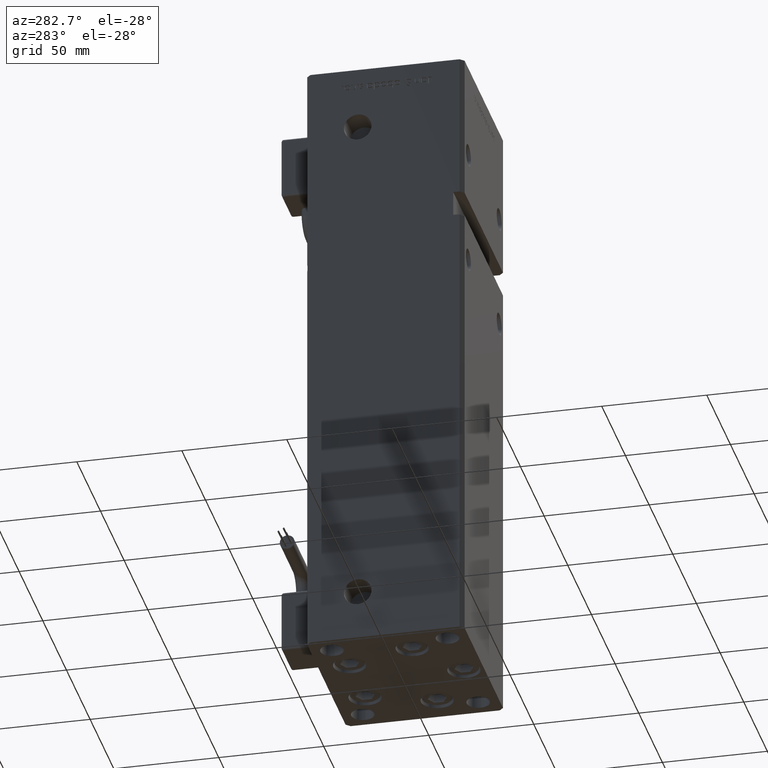
[diagram: clean part render]
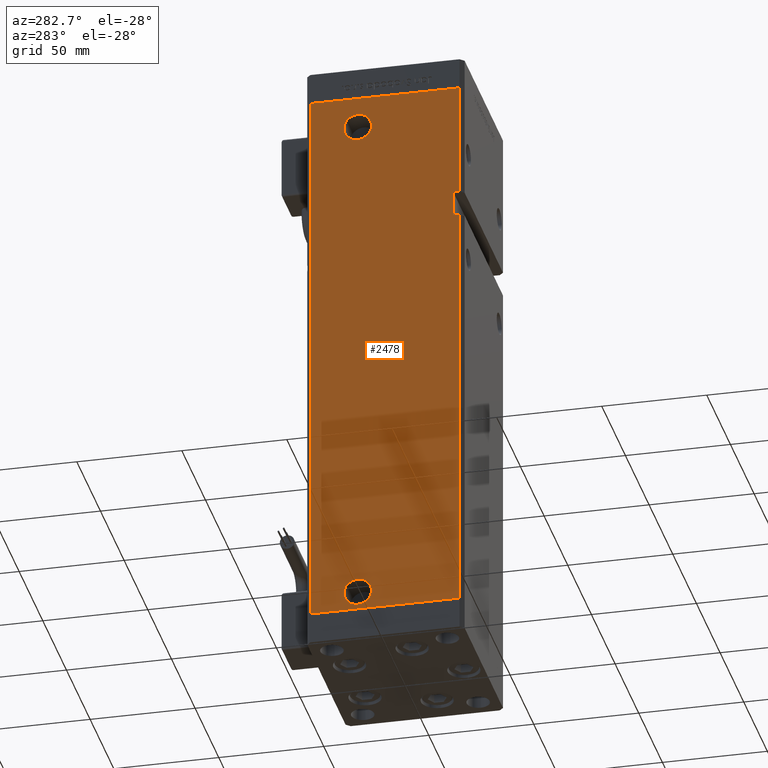
[diagram: same view with one face highlighted and labeled with its STEP entity id]
A machine part, auxiliary view. The second image highlights one B-rep face of the part: STEP entity #2478.
In plain terms, the highlighted planar face has unit normal (1, 0, 0).
Its self-contained STEP definition (entity closure, byte-faithful):
#1711 = ORIENTED_EDGE ( 'NONE', *, *, #8324, .F. ) ;
#2478 = ADVANCED_FACE ( 'NONE', ( #54106, #6136, #16553 ), #32516, .F. ) ;
#2841 = LINE ( 'NONE', #28671, #39061 ) ;
#4008 = CARTESIAN_POINT ( 'NONE',  ( -42.50000000000001421, 35.50000000000000711, 0.000000000000000000 ) ) ;
#4196 = LINE ( 'NONE', #25783, #36272 ) ;
#6136 = FACE_BOUND ( 'NONE', #47079, .T. ) ;
#6181 = CARTESIAN_POINT ( 'NONE',  ( -42.50000000000000000, 6.419999999999950191, 253.5000000000000000 ) ) ;
#7005 = VERTEX_POINT ( 'NONE', #40855 ) ;
#7710 = LINE ( 'NONE', #39672, #38522 ) ;
#7746 = ORIENTED_EDGE ( 'NONE', *, *, #55358, .T. ) ;
#7990 = EDGE_CURVE ( 'NONE', #51947, #43199, #7710, .T. ) ;
#8043 = VERTEX_POINT ( 'NONE', #6181 ) ;
#8183 = ORIENTED_EDGE ( 'NONE', *, *, #14923, .T. ) ;
#8223 = ORIENTED_EDGE ( 'NONE', *, *, #45702, .F. ) ;
#8324 = EDGE_CURVE ( 'NONE', #28341, #53885, #27681, .T. ) ;
#9240 = AXIS2_PLACEMENT_3D ( 'NONE', #15011, #9894, #37128 ) ;
#9894 = DIRECTION ( 'NONE',  ( -1.000000000000000000, -2.275047181608927644E-16, 0.000000000000000000 ) ) ;
#10957 = DIRECTION ( 'NONE',  ( -3.909236002201255146E-16, 1.000000000000000000, 0.000000000000000000 ) ) ;
#11454 = CARTESIAN_POINT ( 'NONE',  ( -42.50000000000000000, 12.99999999999999467, 253.5000000000000000 ) ) ;
#12936 = EDGE_CURVE ( 'NONE', #18418, #47975, #53621, .T. ) ;
#13321 = ORIENTED_EDGE ( 'NONE', *, *, #31096, .F. ) ;
#14887 = CIRCLE ( 'NONE', #40223, 6.580000000000002736 ) ;
#14923 = EDGE_CURVE ( 'NONE', #25477, #53885, #27468, .T. ) ;
#15011 = CARTESIAN_POINT ( 'NONE',  ( -42.50000000000000000, 12.99999999999999467, 253.5000000000000000 ) ) ;
#15026 = ORIENTED_EDGE ( 'NONE', *, *, #30621, .F. ) ;
#16515 = DIRECTION ( 'NONE',  ( -0.000000000000000000, -1.000000000000000000, -0.000000000000000000 ) ) ;
#16553 = FACE_BOUND ( 'NONE', #47668, .T. ) ;
#16571 = VERTEX_POINT ( 'NONE', #20230 ) ;
#16925 = CARTESIAN_POINT ( 'NONE',  ( -42.49999999999998579, -32.50000000000000711, 214.0000000000000284 ) ) ;
#17328 = CARTESIAN_POINT ( 'NONE',  ( -42.49999999999998579, -35.50000000000000711, 0.000000000000000000 ) ) ;
#17627 = CARTESIAN_POINT ( 'NONE',  ( -42.50000000000000000, 6.419999999999991935, 9.000000000000007105 ) ) ;
#17697 = CARTESIAN_POINT ( 'NONE',  ( -42.50000000000001421, 35.50000000000000711, 268.5000000000000000 ) ) ;
#17748 = VECTOR ( 'NONE', #32212, 1000.000000000000000 ) ;
#18395 = AXIS2_PLACEMENT_3D ( 'NONE', #53827, #33854, #10957 ) ;
#18418 = VERTEX_POINT ( 'NONE', #36804 ) ;
#19134 = AXIS2_PLACEMENT_3D ( 'NONE', #11454, #55446, #50887 ) ;
#19504 = CARTESIAN_POINT ( 'NONE',  ( -42.50000000000000000, 12.99999999999999467, 9.000000000000007105 ) ) ;
#19784 = DIRECTION ( 'NONE',  ( -1.000000000000000000, -2.275047181608927644E-16, 0.000000000000000000 ) ) ;
#19799 = CARTESIAN_POINT ( 'NONE',  ( -42.49999999999998579, -35.50000000000000711, 268.5000000000000000 ) ) ;
#19931 = ORIENTED_EDGE ( 'NONE', *, *, #52096, .F. ) ;
#20225 = CIRCLE ( 'NONE', #31058, 6.580000000000002736 ) ;
#20230 = CARTESIAN_POINT ( 'NONE',  ( -42.50000000000000000, 19.57999999999999829, 9.000000000000007105 ) ) ;
#20393 = DIRECTION ( 'NONE',  ( 3.909236002201255146E-16, -1.000000000000000000, 0.000000000000000000 ) ) ;
#21999 = VECTOR ( 'NONE', #33945, 1000.000000000000000 ) ;
#23588 = ORIENTED_EDGE ( 'NONE', *, *, #7990, .T. ) ;
#25159 = LINE ( 'NONE', #16925, #21999 ) ;
#25477 = VERTEX_POINT ( 'NONE', #52828 ) ;
#25783 = CARTESIAN_POINT ( 'NONE',  ( -42.49999999999998579, -32.50000000000000711, 202.0000000000000000 ) ) ;
#25936 = DIRECTION ( 'NONE',  ( -0.000000000000000000, -0.000000000000000000, -1.000000000000000000 ) ) ;
#26060 = CARTESIAN_POINT ( 'NONE',  ( -42.49999999999998579, -35.50000000000001421, 214.0000000000000284 ) ) ;
#26193 = CARTESIAN_POINT ( 'NONE',  ( -42.50000000000000000, 19.58000000000003737, 253.5000000000000000 ) ) ;
#27468 = LINE ( 'NONE', #4008, #46819 ) ;
#27681 = LINE ( 'NONE', #48695, #17748 ) ;
#28341 = VERTEX_POINT ( 'NONE', #34496 ) ;
#28436 = VECTOR ( 'NONE', #25936, 1000.000000000000000 ) ;
#28671 = CARTESIAN_POINT ( 'NONE',  ( -42.49999999999998579, -35.50000000000000711, 268.5000000000000000 ) ) ;
#29157 = CIRCLE ( 'NONE', #9240, 6.580000000000044480 ) ;
#29618 = LINE ( 'NONE', #17697, #28436 ) ;
#30386 = DIRECTION ( 'NONE',  ( 3.909236002201255146E-16, -1.000000000000000000, 0.000000000000000000 ) ) ;
#30621 = EDGE_CURVE ( 'NONE', #47975, #43199, #2841, .T. ) ;
#31058 = AXIS2_PLACEMENT_3D ( 'NONE', #19504, #19784, #50158 ) ;
#31096 = EDGE_CURVE ( 'NONE', #8043, #54371, #39987, .T. ) ;
#32212 = DIRECTION ( 'NONE',  ( -0.000000000000000000, -0.000000000000000000, -1.000000000000000000 ) ) ;
#32516 = PLANE ( 'NONE',  #18395 ) ;
#32681 = CARTESIAN_POINT ( 'NONE',  ( -42.50000000000000000, 12.99999999999999467, 9.000000000000007105 ) ) ;
#32966 = DIRECTION ( 'NONE',  ( 0.000000000000000000, -1.000000000000000000, 0.000000000000000000 ) ) ;
#33854 = DIRECTION ( 'NONE',  ( 1.000000000000000000, 3.909236002201255146E-16, -0.000000000000000000 ) ) ;
#33945 = DIRECTION ( 'NONE',  ( -5.782411586589351722E-16, 0.000000000000000000, -1.000000000000000000 ) ) ;
#34496 = CARTESIAN_POINT ( 'NONE',  ( -42.49999999999998579, -35.49999999999996447, 202.0000000000000000 ) ) ;
#35982 = ORIENTED_EDGE ( 'NONE', *, *, #52206, .F. ) ;
#36272 = VECTOR ( 'NONE', #52172, 1000.000000000000000 ) ;
#36683 = DIRECTION ( 'NONE',  ( -1.000000000000000000, -2.275047181608927644E-16, 0.000000000000000000 ) ) ;
#36804 = CARTESIAN_POINT ( 'NONE',  ( -42.50000000000001421, 35.50000000000000711, 268.5000000000000000 ) ) ;
#37128 = DIRECTION ( 'NONE',  ( 0.000000000000000000, -1.000000000000000000, 0.000000000000000000 ) ) ;
#38522 = VECTOR ( 'NONE', #16515, 1000.000000000000000 ) ;
#38542 = CARTESIAN_POINT ( 'NONE',  ( -42.49999999999998579, -32.50000000000000711, 214.0000000000000284 ) ) ;
#39061 = VECTOR ( 'NONE', #54244, 1000.000000000000000 ) ;
#39672 = CARTESIAN_POINT ( 'NONE',  ( -42.49999999999998579, -32.50000000000000711, 214.0000000000000284 ) ) ;
#39987 = CIRCLE ( 'NONE', #19134, 6.580000000000044480 ) ;
#40223 = AXIS2_PLACEMENT_3D ( 'NONE', #32681, #36683, #32966 ) ;
#40855 = CARTESIAN_POINT ( 'NONE',  ( -42.49999999999998579, -32.50000000000000711, 202.0000000000000000 ) ) ;
#43199 = VERTEX_POINT ( 'NONE', #26060 ) ;
#44582 = ORIENTED_EDGE ( 'NONE', *, *, #12936, .F. ) ;
#45702 = EDGE_CURVE ( 'NONE', #7005, #28341, #4196, .T. ) ;
#46209 = VERTEX_POINT ( 'NONE', #17627 ) ;
#46819 = VECTOR ( 'NONE', #30386, 1000.000000000000000 ) ;
#47079 = EDGE_LOOP ( 'NONE', ( #51229, #19931 ) ) ;
#47668 = EDGE_LOOP ( 'NONE', ( #13321, #54325 ) ) ;
#47975 = VERTEX_POINT ( 'NONE', #19799 ) ;
#48695 = CARTESIAN_POINT ( 'NONE',  ( -42.49999999999998579, -35.50000000000000711, 268.5000000000000000 ) ) ;
#49720 = EDGE_CURVE ( 'NONE', #54371, #8043, #29157, .T. ) ;
#50158 = DIRECTION ( 'NONE',  ( 0.000000000000000000, -1.000000000000000000, 0.000000000000000000 ) ) ;
#50887 = DIRECTION ( 'NONE',  ( 0.000000000000000000, -1.000000000000000000, 0.000000000000000000 ) ) ;
#51229 = ORIENTED_EDGE ( 'NONE', *, *, #54641, .F. ) ;
#51947 = VERTEX_POINT ( 'NONE', #38542 ) ;
#52096 = EDGE_CURVE ( 'NONE', #16571, #46209, #20225, .T. ) ;
#52172 = DIRECTION ( 'NONE',  ( -0.000000000000000000, -1.000000000000000000, -0.000000000000000000 ) ) ;
#52206 = EDGE_CURVE ( 'NONE', #51947, #7005, #25159, .T. ) ;
#52828 = CARTESIAN_POINT ( 'NONE',  ( -42.50000000000001421, 35.50000000000000711, 0.000000000000000000 ) ) ;
#53621 = LINE ( 'NONE', #55587, #54049 ) ;
#53827 = CARTESIAN_POINT ( 'NONE',  ( -42.50000000000001421, 35.50000000000000711, 268.5000000000000000 ) ) ;
#53885 = VERTEX_POINT ( 'NONE', #17328 ) ;
#54049 = VECTOR ( 'NONE', #20393, 1000.000000000000000 ) ;
#54106 = FACE_OUTER_BOUND ( 'NONE', #54243, .T. ) ;
#54243 = EDGE_LOOP ( 'NONE', ( #1711, #8223, #35982, #23588, #15026, #44582, #7746, #8183 ) ) ;
#54244 = DIRECTION ( 'NONE',  ( -0.000000000000000000, -0.000000000000000000, -1.000000000000000000 ) ) ;
#54325 = ORIENTED_EDGE ( 'NONE', *, *, #49720, .F. ) ;
#54371 = VERTEX_POINT ( 'NONE', #26193 ) ;
#54641 = EDGE_CURVE ( 'NONE', #46209, #16571, #14887, .T. ) ;
#55358 = EDGE_CURVE ( 'NONE', #18418, #25477, #29618, .T. ) ;
#55446 = DIRECTION ( 'NONE',  ( -1.000000000000000000, -2.275047181608927644E-16, 0.000000000000000000 ) ) ;
#55587 = CARTESIAN_POINT ( 'NONE',  ( -42.50000000000001421, 35.50000000000000711, 268.5000000000000000 ) ) ;